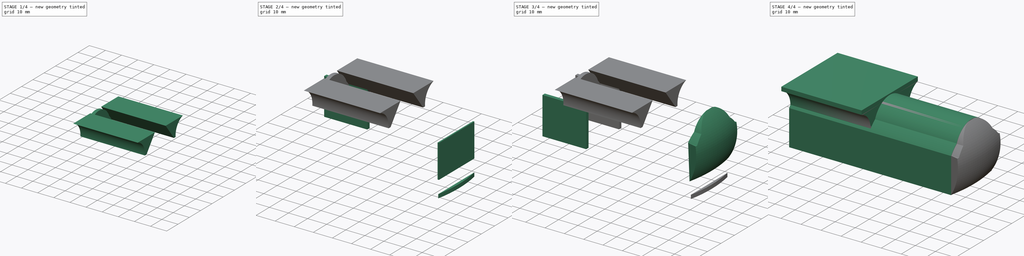
[diagram: build sequence overview — one tinted view per stage of 4, left to right]
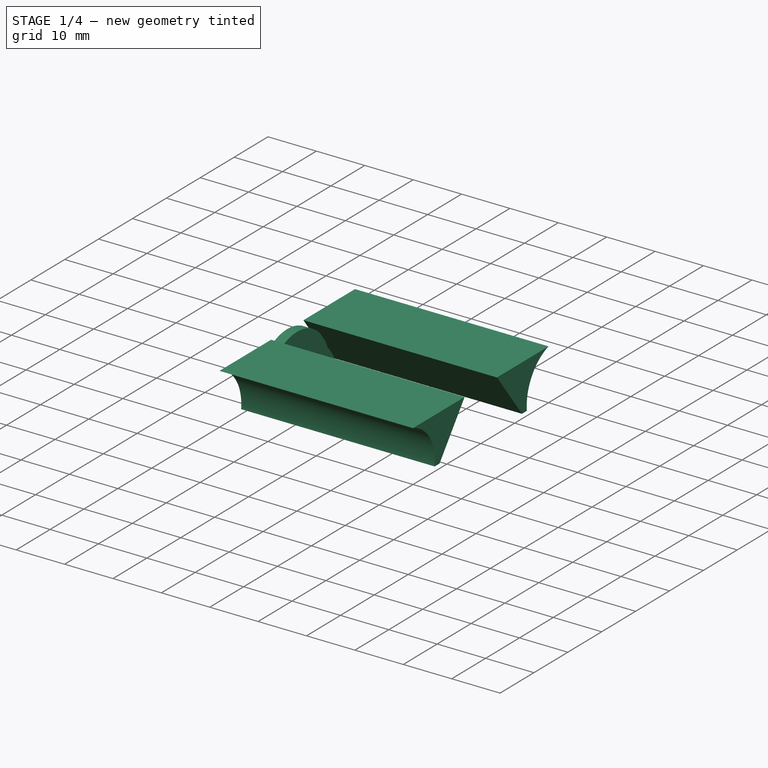
[diagram: stage 1 of 4 — iso view after this stage's code; geometry added in this stage tinted green]
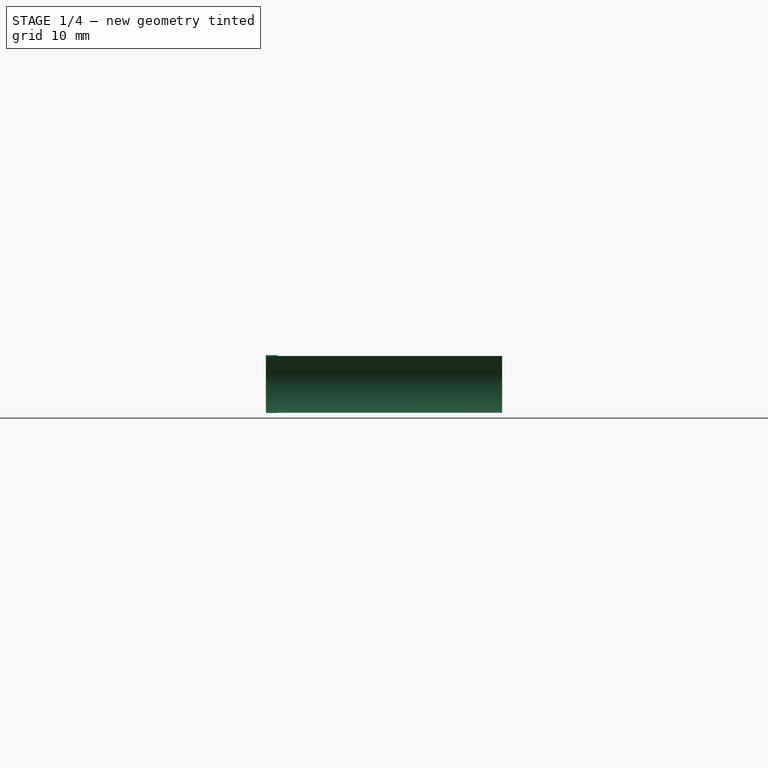
[diagram: stage 1 of 4 — front view after this stage's code; geometry added in this stage tinted green]
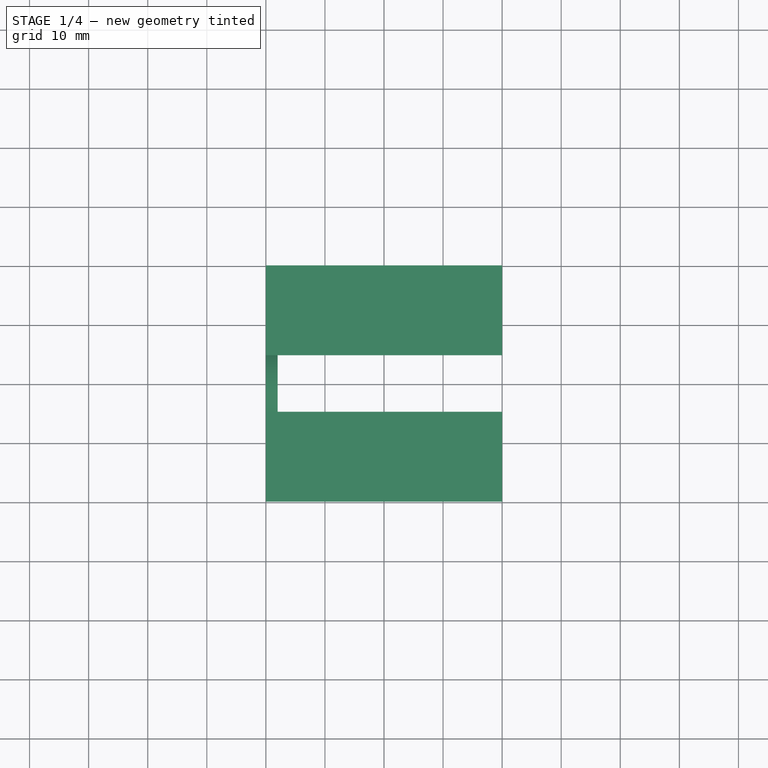
[diagram: stage 1 of 4 — top view after this stage's code; geometry added in this stage tinted green]
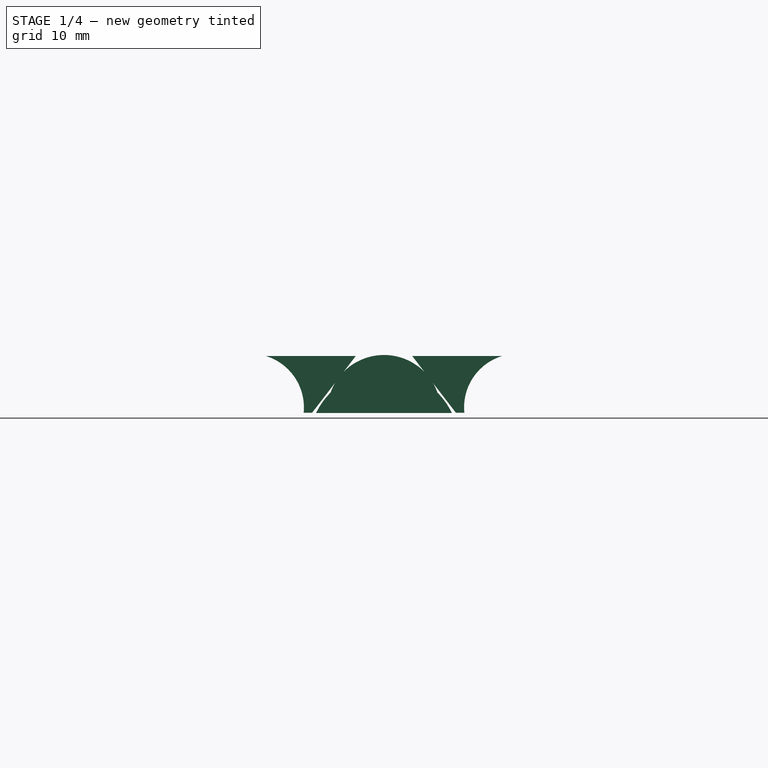
[diagram: stage 1 of 4 — right view after this stage's code; geometry added in this stage tinted green]
FCSTD DOCUMENT  (FreeCAD 0.18R16146 (Git))
Label: 02_MinibotShell
License: All rights reserved
LicenseURL: http://en.wikipedia.org/wiki/All_rights_reserved
objects: Sketcher::SketchObject×10, PartDesign::Body×7, Part::Feature×6, PartDesign::Pad×6, Part::Box×4, PartDesign::Revolution×1, Part::Cut×1, App::MeasureDistance×1, Part::MultiFuse×1, App::DocumentObjectGroup×1
note: 43 computed .brp shape members not serialized (recipe doc carries the construction recipe); baked Part::Feature solids carry a one-line shape summary decoded from their .brp

FEATURE [Sketcher::SketchObject] Sketch009
  MapMode = 5
  Placement = pos=(0,0,0) rot=(0.57735,0.57735,0.57735;2.0944rad)
  Support = -> [YZ_Plane006]
FEATURE [PartDesign::Body] Body021008
  Group = -> [Sketch008,Pad004,Sketch009]
  Origin = -> Origin006
  Placement = pos=(0,0,8.5) rot=(0,0,1;0rad)
  Tip = -> Pad004
FEATURE [PartDesign::Pad] Pad005
  Length = 2
  Length2 = 100
  Placement = pos=(0,0,0) rot=(0.57735,0.57735,0.57735;2.0944rad)
  Profile = -> Sketch003
  Type = 0
FEATURE [PartDesign::Body] Body021009
  Group = -> [Sketch003,Pad005]
  Origin = -> Origin007
  Placement = pos=(-14.8,0,-0.25) rot=(0,0,1;0rad)
  Tip = -> Pad005
FEATURE [Sketcher::SketchObject] Sketch010
  MapMode = 5
  Placement = pos=(0,0,0) rot=(0.57735,0.57735,0.57735;2.0944rad)
  Support = -> [YZ_Plane008]
  sketch-geometry (4):
    g0: ArcOfCircle CenterX=-22.6622 CenterY=27.1919 CenterZ=0 NormalX=0 NormalY=0 NormalZ=1 AngleXU=0 Radius=9.10594 StartAngle=6.18508 EndAngle=7.55729
    g1: LineSegment StartX=-20 StartY=35.9 StartZ=0 EndX=-4.77584 EndY=35.9 EndZ=0
    g2: LineSegment StartX=-4.77584 StartY=35.9 StartZ=0 EndX=-12.1609 EndY=26.3 EndZ=0
    g3: LineSegment StartX=-12.1609 StartY=26.3 StartZ=0 EndX=-13.6 EndY=26.3 EndZ=0
  constraints (6):
    c: Coincident(g1,g0)
    c: Horizontal(g1)
    c: Coincident(g1,g2)
    c: Coincident(g2,g3)
    c: Coincident(g3,g0)
    c: Horizontal(g3)
FEATURE [Sketcher::SketchObject] Sketch011
  MapMode = 5
  Placement = pos=(0,0,0) rot=(0.57735,0.57735,0.57735;2.0944rad)
  Support = -> [YZ_Plane009]
  sketch-geometry (4):
    g0: ArcOfCircle CenterX=22.6622 CenterY=27.1919 CenterZ=0 NormalX=0 NormalY=0 NormalZ=1 AngleXU=0 Radius=9.10594 StartAngle=1.86748 EndAngle=3.2397
    g1: LineSegment StartX=20 StartY=35.9 StartZ=0 EndX=4.77584 EndY=35.9 EndZ=0
    g2: LineSegment StartX=4.77584 StartY=35.9 StartZ=0 EndX=12.1609 EndY=26.3 EndZ=0
    g3: LineSegment StartX=12.1609 StartY=26.3 StartZ=0 EndX=13.6 EndY=26.3 EndZ=0
  constraints (6):
    c: Coincident(g1,g0)
    c: Horizontal(g1)
    c: Coincident(g1,g2)
    c: Coincident(g2,g3)
    c: Coincident(g3,g0)
    c: Horizontal(g3)
FEATURE [PartDesign::Pad] Pad006
  Length = 40
  Length2 = 100
  Placement = pos=(0,0,0) rot=(0.57735,0.57735,0.57735;2.0944rad)
  Profile = -> Sketch010
  Type = 0
FEATURE [PartDesign::Body] Body021010
  Group = -> [Sketch010,Pad006]
  Origin = -> Origin008
  Placement = pos=(-14.8,0,0) rot=(0,0,1;0rad)
  Tip = -> Pad006
FEATURE [PartDesign::Pad] Pad007
  Length = 40
  Length2 = 100
  Placement = pos=(0,0,0) rot=(0.57735,0.57735,0.57735;2.0944rad)
  Profile = -> Sketch011
  Type = 0
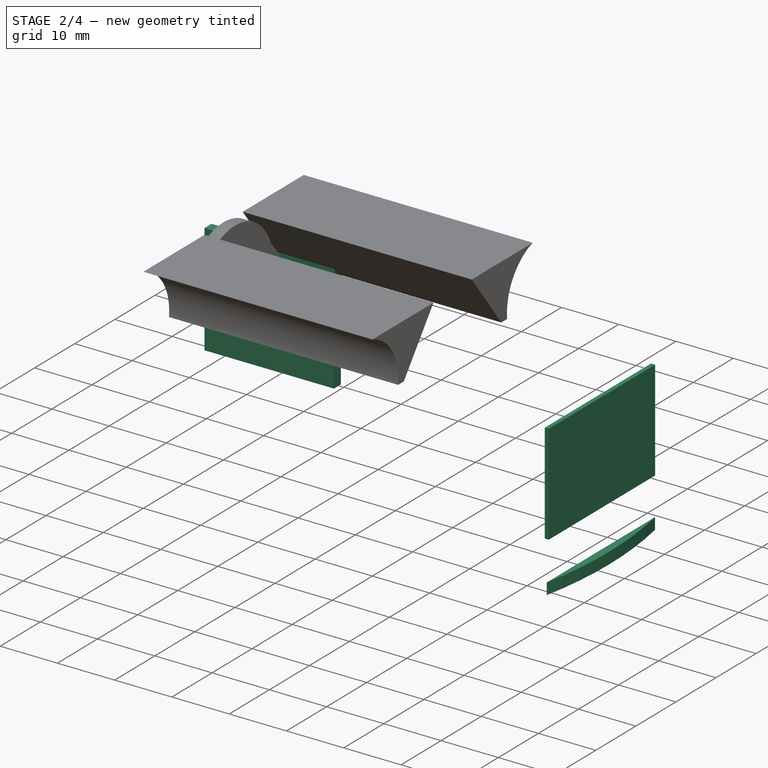
[diagram: stage 2 of 4 — iso view after this stage's code; geometry added in this stage tinted green]
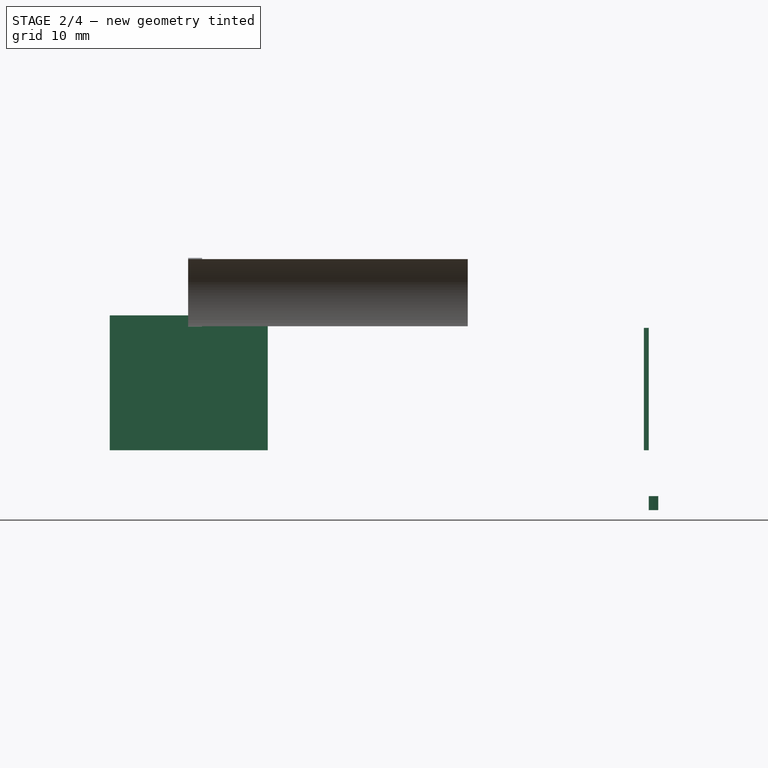
[diagram: stage 2 of 4 — front view after this stage's code; geometry added in this stage tinted green]
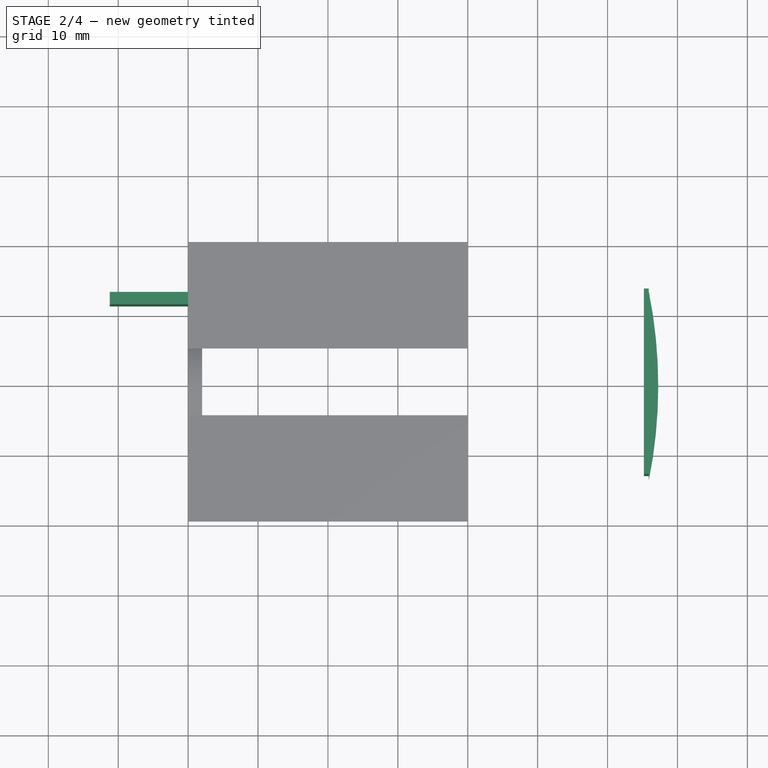
[diagram: stage 2 of 4 — top view after this stage's code; geometry added in this stage tinted green]
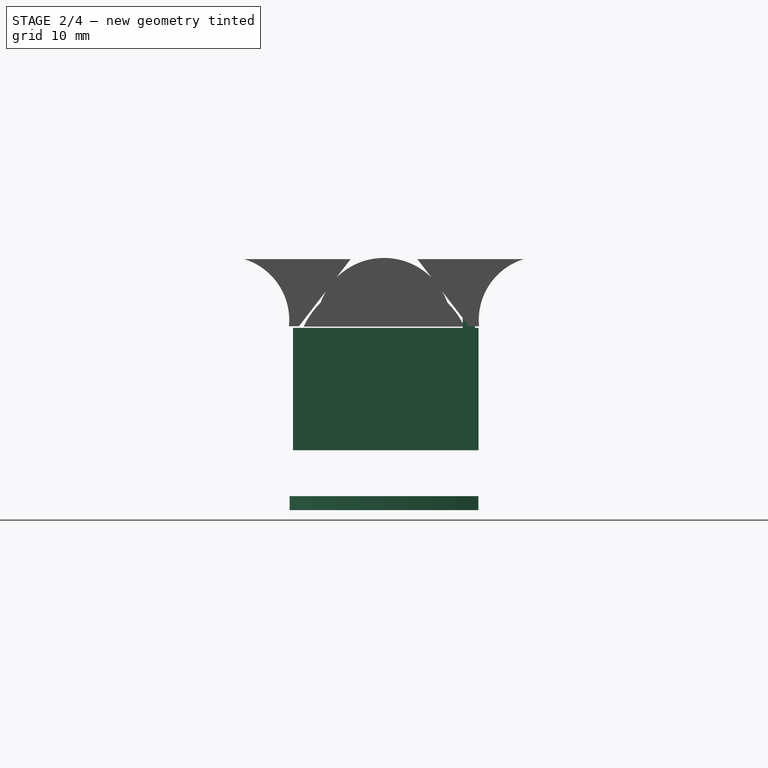
[diagram: stage 2 of 4 — right view after this stage's code; geometry added in this stage tinted green]
FEATURE [Part::Box] Box002  label="Cube002"
  AttacherType = Attacher::AttachEngine3D
  Height = 19.3
  Length = 22.6
  Placement = pos=(-11.21,11.26,8.56) rot=(0,0,1;0rad)
  Width = 1.75
FEATURE [Part::Box] Box003  label="Cube003"
  AttacherType = Attacher::AttachEngine3D
  Height = 17.5
  Length = 26.54
  Placement = pos=(65.9,-13.02,8.56) rot=(0,0,1;1.5708rad)
  Width = 0.7
FEATURE [Sketcher::SketchObject] Sketch008
  MapMode = 5
  Support = -> [XY_Plane006]
  sketch-geometry (2):
    g0: ArcOfCircle CenterX=-0.91233 CenterY=-1.17e-14 CenterZ=0 NormalX=0 NormalY=0 NormalZ=1 AngleXU=0 Radius=68.1626 StartAngle=6.08381 EndAngle=6.48256
    g1: LineSegment StartX=65.9 StartY=13.5 StartZ=0 EndX=65.9 EndY=-13.5 EndZ=0
  constraints (3):
    c: Symmetric(g0,g0,g-1)
    c: Coincident(g1,g0)
    c: Coincident(g1,g0)
FEATURE [PartDesign::Pad] Pad004
  Length = 2
  Length2 = 100
  Profile = -> Sketch008
  Type = 0
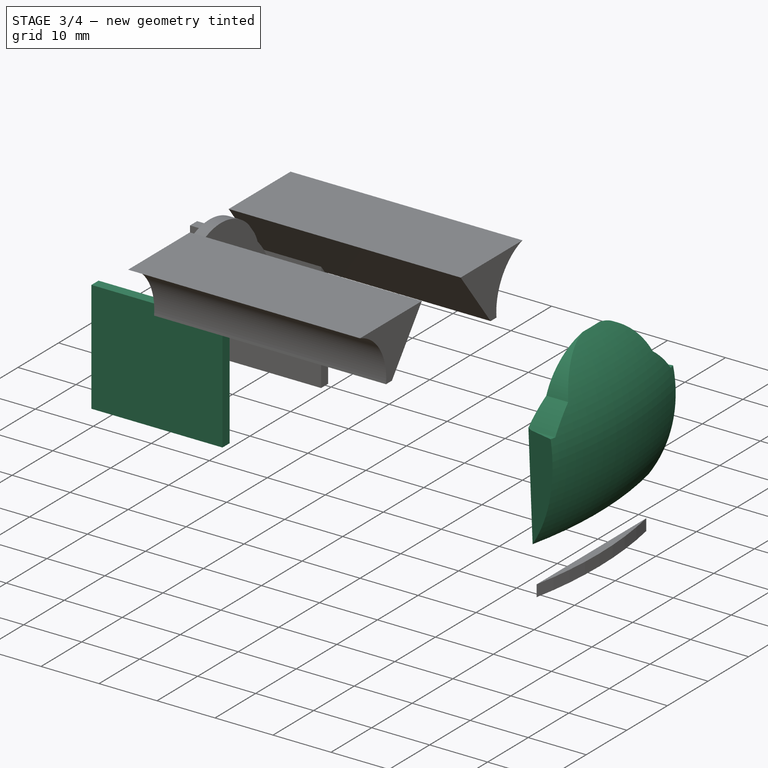
[diagram: stage 3 of 4 — iso view after this stage's code; geometry added in this stage tinted green]
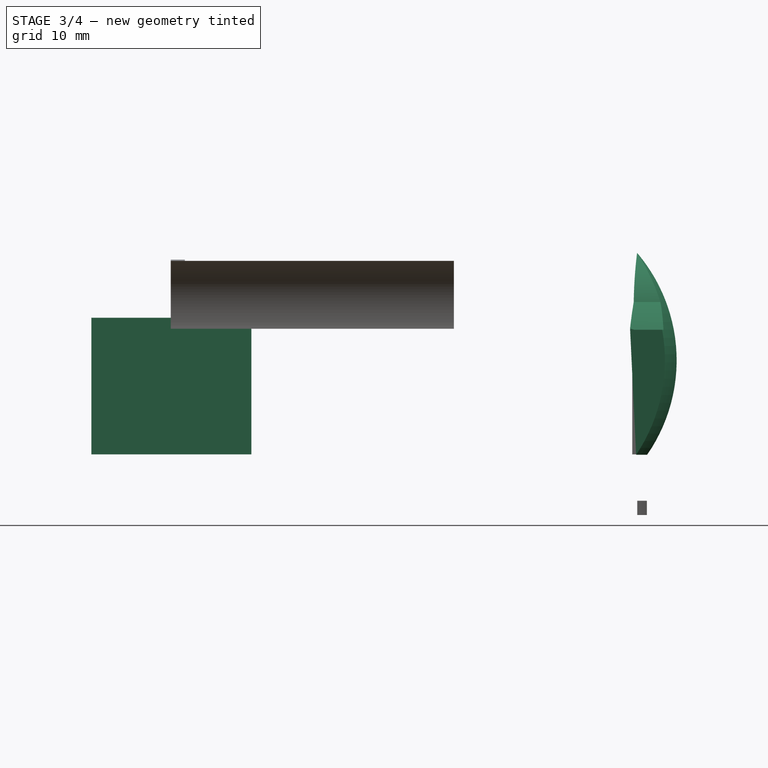
[diagram: stage 3 of 4 — front view after this stage's code; geometry added in this stage tinted green]
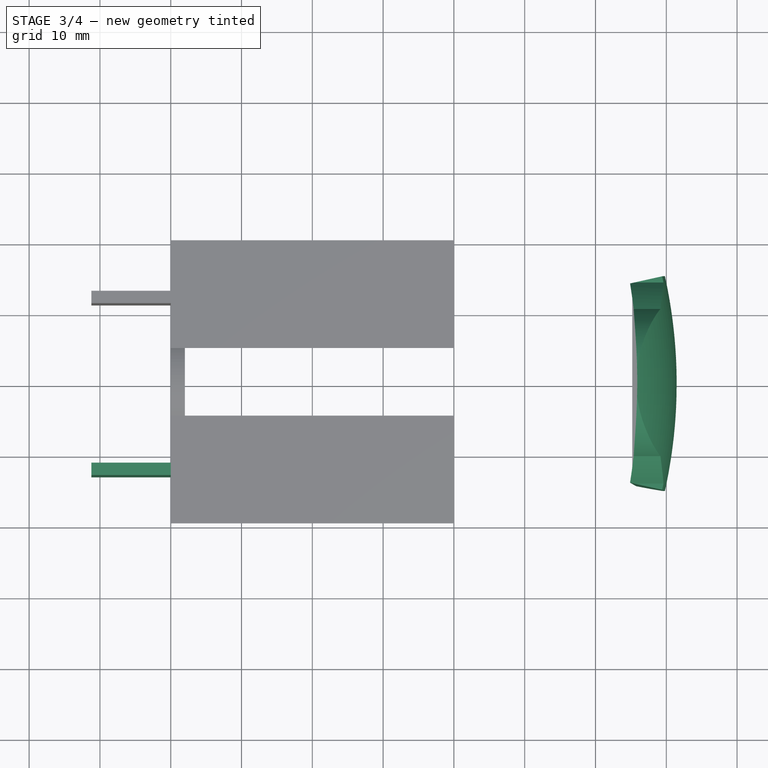
[diagram: stage 3 of 4 — top view after this stage's code; geometry added in this stage tinted green]
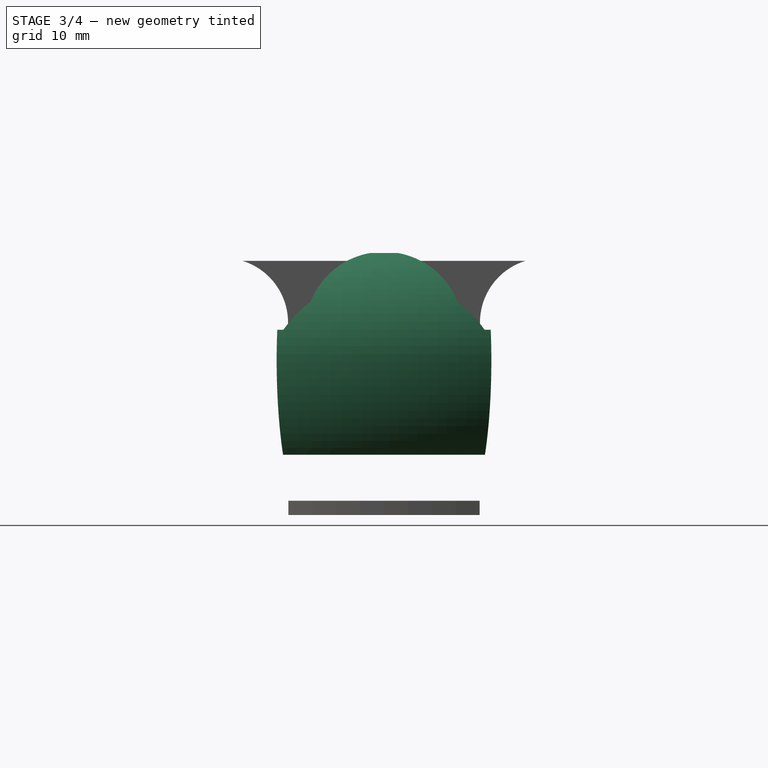
[diagram: stage 3 of 4 — right view after this stage's code; geometry added in this stage tinted green]
FEATURE [Part::Feature] Cut006  label="Tyre001"
  Placement = pos=(5.2,-23.5,0) rot=(0,0,1;0rad)
  shape: bbox 55.35 x 17.81 x 55.35 mm, 130 faces (baked)
FEATURE [Sketcher::SketchObject] Sketch006
  MapMode = 5
  Placement = pos=(0,0,0) rot=(1,0,0;1.5708rad)
  Support = -> [XZ_Plane004]
  sketch-geometry (2):
    g0: ArcOfCircle CenterX=46.6416 CenterY=21.8415 CenterZ=0 NormalX=0 NormalY=0 NormalZ=1 AngleXU=0 Radius=23.4245 StartAngle=5.67757 EndAngle=6.98699
    g1: LineSegment StartX=64.5 StartY=37 StartZ=0 EndX=65.9 EndY=8.50667 EndZ=0
  constraints (4):
    c: Coincident(g1,g0)
    c: Coincident(g1,g0)
    c: DistanceX(g0) = 65.9
    c: DistanceY(g0) = 8.50667
FEATURE [PartDesign::Revolution] Revolution
  Angle = 25
  Axis = (0,-2e-16,1)
  Base = (0,0,0)
  Midplane = true
  Placement = pos=(0,0,0) rot=(1,0,0;1.5708rad)
  Profile = -> Sketch006
  ReferenceAxis = -> Sketch006 [V_Axis]
  Reversed = true
FEATURE [PartDesign::Body] Body021006
  Group = -> [Sketch006,Revolution]
  Origin = -> Origin004
  Tip = -> Revolution
FEATURE [Sketcher::SketchObject] Sketch007
  MapMode = 5
  Placement = pos=(0,0,0) rot=(0.57735,0.57735,0.57735;2.0944rad)
  Support = -> [YZ_Plane005]
  sketch-geometry (8):
    g0: ArcOfCircle CenterX=4.03413e-05 CenterY=26.0022 CenterZ=0 NormalX=0 NormalY=0 NormalZ=1 AngleXU=0 Radius=11.1751 StartAngle=0.374591 EndAngle=2.76699
    g1: ArcOfCircle CenterX=-2.4e-15 CenterY=16.2104 CenterZ=0 NormalX=0 NormalY=0 NormalZ=1 AngleXU=0 Radius=17.3447 StartAngle=0.610658 EndAngle=0.927768
    g2: ArcOfCircle CenterX=-2.4e-15 CenterY=16.2104 CenterZ=0 NormalX=0 NormalY=0 NormalZ=1 AngleXU=0 Radius=17.3447 StartAngle=2.21382 EndAngle=2.53093
    g3: LineSegment StartX=-14.21 StartY=26.156 StartZ=0 EndX=-18.6744 EndY=26.156 EndZ=0
    g4: LineSegment StartX=-18.6744 StartY=26.156 StartZ=0 EndX=-18.6744 EndY=41 EndZ=0
    g5: LineSegment StartX=-18.6744 StartY=41 StartZ=0 EndX=18.5 EndY=41 EndZ=0
    g6: LineSegment StartX=18.5 StartY=41 StartZ=0 EndX=18.5 EndY=26.156 EndZ=0
    g7: LineSegment StartX=18.5 StartY=26.156 StartZ=0 EndX=14.21 EndY=26.156 EndZ=0
  constraints (17):
    c: Equal(g1,g2)
    c: Coincident(g1,g2)
    c: Coincident(g0,g2)
    c: Coincident(g0,g1)
    c: Coincident(g3,g2)
    c: Horizontal(g3)
    c: Coincident(g4,g3)
    c: Vertical(g4)
    c: Coincident(g4,g5)
    c: Horizontal(g5)
    c: Coincident(g5,g6)
    c: Vertical(g6)
    c: Coincident(g6,g7)
    c: Horizontal(g7)
    c: Coincident(g1,g7)
    c: Symmetric(g2,g1,g-2)
    c: DistanceX(g2) = -14.21
FEATURE [PartDesign::Pad] Pad003
  Length = 50
  Length2 = 100
  Placement = pos=(0,0,0) rot=(0.57735,0.57735,0.57735;2.0944rad)
  Profile = -> Sketch007
  Type = 0
FEATURE [PartDesign::Body] Body021007
  Group = -> [Sketch007,Pad003]
  Origin = -> Origin005
  Placement = pos=(36.8,0,0) rot=(0,0,1;0rad)
  Tip = -> Pad003
FEATURE [Part::Cut] Cut
  Base = -> Body021006
  Placement = pos=(1.4,0,0) rot=(0,0,1;0rad)
  Tool = -> Body021007
FEATURE [Part::Box] Box001  label="Cube001"
  AttacherType = Attacher::AttachEngine3D
  Height = 19.3
  Length = 22.6
  Placement = pos=(-11.21,-13.02,8.56) rot=(0,0,1;0rad)
  Width = 1.75
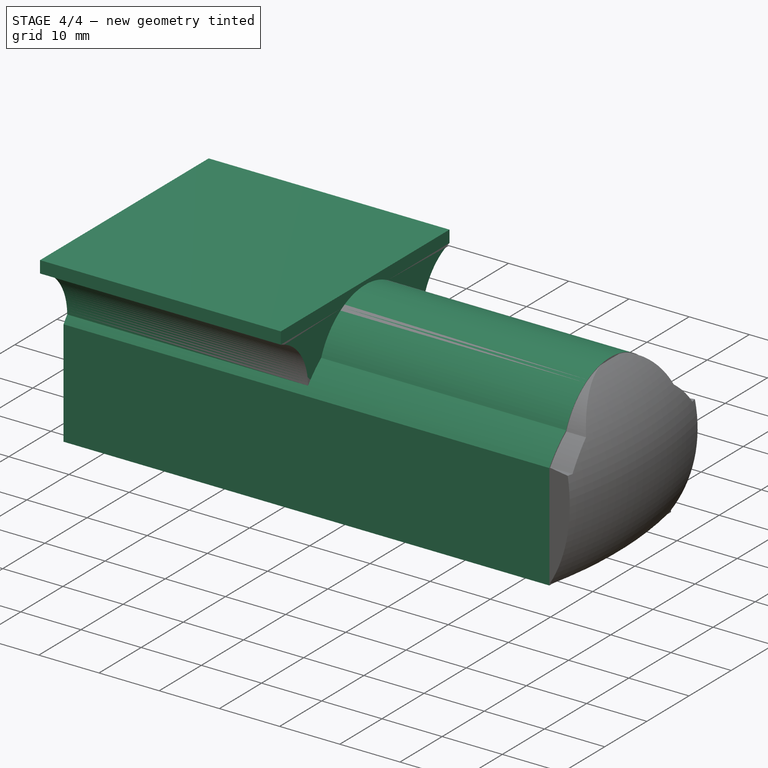
[diagram: stage 4 of 4 — iso view after this stage's code; geometry added in this stage tinted green]
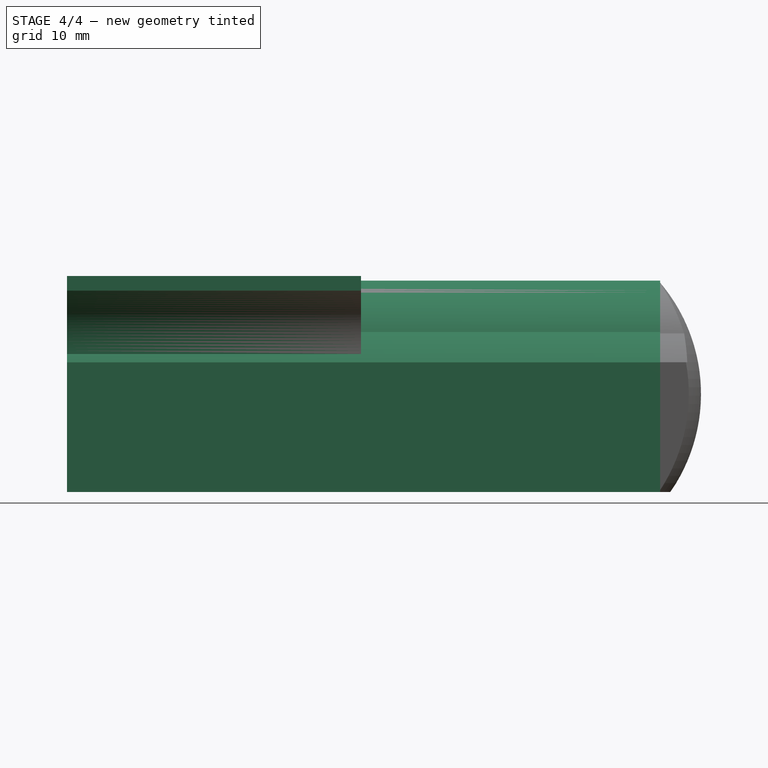
[diagram: stage 4 of 4 — front view after this stage's code; geometry added in this stage tinted green]
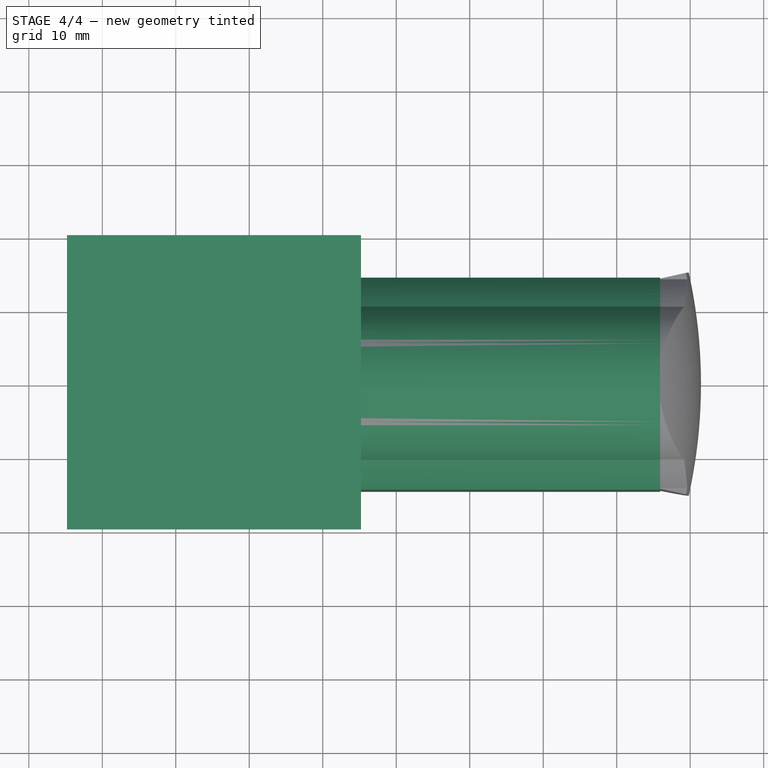
[diagram: stage 4 of 4 — top view after this stage's code; geometry added in this stage tinted green]
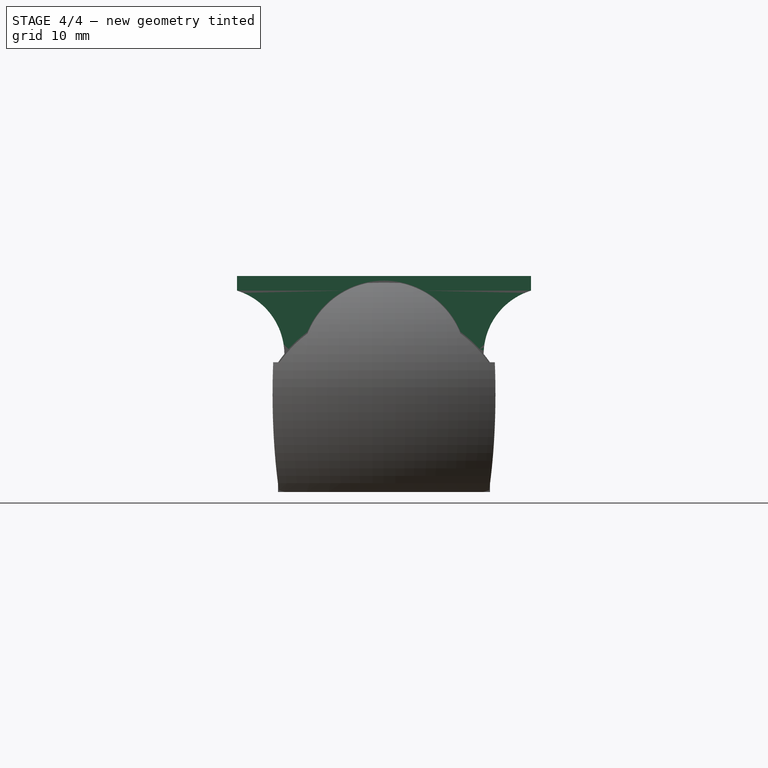
[diagram: stage 4 of 4 — right view after this stage's code; geometry added in this stage tinted green]
FEATURE [Part::Feature] Fusion041001  label="Chassis001"
  shape: bbox 85.95 x 51.01 x 34 mm, 228 faces (baked)
FEATURE [Sketcher::SketchObject] Sketch
FEATURE [Part::Feature] Body007001  label="RightBackWheel"
  shape: bbox 50 x 17.02 x 50 mm, 26 faces (baked)
FEATURE [Part::Feature] Body007002  label="LeftBackWheel"
  Placement = pos=(0,0,0) rot=(1,0,0;3.14159rad)
  shape: bbox 50 x 17.02 x 50 mm, 26 faces (baked)
FEATURE [Part::Feature] Body021001  label="FrontWheelRight"
  shape: bbox 17.9 x 10.07 x 17.9 mm, 26 faces (baked)
FEATURE [Part::Feature] Body021002  label="FrontWheelLeft"
  Placement = pos=(0,-4e-15,-21) rot=(1,0,0;3.14159rad)
  shape: bbox 17.9 x 10.07 x 17.9 mm, 26 faces (baked)
FEATURE [Sketcher::SketchObject] Sketch001
  MapMode = 5
  Placement = pos=(0,0,0) rot=(0.57735,0.57735,0.57735;2.0944rad)
  Support = -> [YZ_Plane]
  sketch-geometry (14):
    g0: ArcOfCircle CenterX=-0.0078968 CenterY=26.0022 CenterZ=0 NormalX=0 NormalY=0 NormalZ=1 AngleXU=0 Radius=11.2588 StartAngle=0.390649 EndAngle=2.75255
    g1: ArcOfCircle CenterX=-1e-16 CenterY=16.1989 CenterZ=0 NormalX=0 NormalY=0 NormalZ=1 AngleXU=0 Radius=17.5145 StartAngle=0.603272 EndAngle=0.934841
    g2: ArcOfCircle CenterX=-1e-16 CenterY=16.1989 CenterZ=0 NormalX=0 NormalY=0 NormalZ=1 AngleXU=0 Radius=17.5145 StartAngle=2.20836 EndAngle=2.53832
    g3: LineSegment StartX=14.4229 StartY=26.1356 StartZ=0 EndX=14.4229 EndY=8.50595 EndZ=0
    g4: LineSegment StartX=14.4229 StartY=8.50595 StartZ=0 EndX=13.02 EndY=8.50595 EndZ=0
    g5: LineSegment StartX=-14.4229 StartY=8.50595 StartZ=0 EndX=-14.4229 EndY=26.1356 EndZ=0
    g6: LineSegment StartX=13.02 StartY=8.50595 StartZ=0 EndX=13.02 EndY=25.9942 EndZ=0
    g7: LineSegment StartX=-13.02 StartY=25.9942 StartZ=0 EndX=-13.02 EndY=8.50595 EndZ=0
    g8: LineSegment StartX=-13.02 StartY=8.50595 StartZ=0 EndX=-14.4229 EndY=8.50595 EndZ=0
    g9: ArcOfCircle CenterX=-5e-16 CenterY=25.8727 CenterZ=0 NormalX=0 NormalY=0 NormalZ=1 AngleXU=0 Radius=9.74347 StartAngle=0.389853 EndAngle=2.75174
    g10: ArcOfCircle CenterX=-4e-16 CenterY=20.6563 CenterZ=0 NormalX=0 NormalY=0 NormalZ=1 AngleXU=0 Radius=12.6799 StartAngle=0.434522 EndAngle=0.780215
    g11: ArcOfCircle CenterX=-4e-16 CenterY=20.6563 CenterZ=0 NormalX=0 NormalY=0 NormalZ=1 AngleXU=0 Radius=12.6799 StartAngle=2.36138 EndAngle=2.70707
    g12: LineSegment StartX=-13.02 StartY=25.9942 StartZ=0 EndX=-11.5015 EndY=25.9942 EndZ=0
    g13: LineSegment StartX=11.5015 StartY=25.9942 StartZ=0 EndX=13.02 EndY=25.9942 EndZ=0
  constraints (32):
    c: Equal(g1,g2)
    c: Coincident(g1,g2)
    c: Coincident(g3,g4)
    c: Coincident(g8,g5)
    c: Vertical(g3)
    c: Vertical(g5)
    c: Vertical(g6)
    c: Coincident(g4,g6)
    c: Tangent(g4,g8)
    c: Coincident(g0,g2)
    c: Coincident(g2,g5)
    c: Coincident(g0,g1)
    c: Coincident(g1,g3)
    c: Coincident(g7,g8)
    c: Equal(g10,g11)
    c: Coincident(g10,g11)
    c: Coincident(g9,g11)
    c: Coincident(g9,g10)
    c: Coincident(g12,g7)
    c: Coincident(g12,g11)
    c: Horizontal(g12)
    c: Coincident(g13,g10)
    c: Coincident(g13,g6)
    c: Horizontal(g13)
    c: Symmetric(g7,g4,g-2)
    c: DistanceX(g9) = -9.01236
    c: DistanceY(g9) = 29.5757
    c: Symmetric(g9,g9,g-2)
    c: Distance(g2,g7) = 1.41
    c: DistanceX(g7) = -13.02
    c: Symmetric(g7,g6,g-2)
    c: Symmetric(g1,g2,g-2)
FEATURE [Sketcher::SketchObject] Sketch002
  Placement = pos=(0,0,0) rot=(0.57735,0.57735,0.57735;2.0944rad)
  sketch-geometry (9):
    g0: ArcOfCircle CenterX=-0.00032352 CenterY=26.0009 CenterZ=0 NormalX=0 NormalY=0 NormalZ=1 AngleXU=0 Radius=10.498 StartAngle=0.349633 EndAngle=2.79196
    g1: ArcOfCircle CenterX=-0.00122341 CenterY=15.9948 CenterZ=0 NormalX=0 NormalY=0 NormalZ=1 AngleXU=0 Radius=16.8024 StartAngle=0.637841 EndAngle=0.943404
    g2: ArcOfCircle CenterX=-0.00122341 CenterY=15.9948 CenterZ=0 NormalX=0 NormalY=0 NormalZ=1 AngleXU=0 Radius=16.8024 StartAngle=2.19801 EndAngle=2.50375
    g3: LineSegment StartX=13.5 StartY=26 StartZ=0 EndX=13.5 EndY=11.3488 EndZ=0
    g4: LineSegment StartX=13.5 StartY=11.3488 StartZ=0 EndX=12.2709 EndY=11.3488 EndZ=0
    g5: LineSegment StartX=-13.5 StartY=11.3488 StartZ=0 EndX=-13.5 EndY=26 EndZ=0
    g6: LineSegment StartX=12.2709 StartY=11.3488 StartZ=0 EndX=12.2709 EndY=26 EndZ=0
    g7: LineSegment StartX=-12.2734 StartY=26 StartZ=0 EndX=-12.2734 EndY=11.3425 EndZ=0
    g8: LineSegment StartX=-12.2734 StartY=11.3488 StartZ=0 EndX=-13.5 EndY=11.3488 EndZ=0
  constraints (14):
    c: Equal(g1,g2)
    c: PointOnObject(g1,g0)
    c: PointOnObject(g2,g0)
    c: Coincident(g1,g2)
    c: Coincident(g3,g4)
    c: Coincident(g8,g5)
    c: Horizontal(g4)
    c: Vertical(g3)
    c: Vertical(g5)
    c: Vertical(g6)
    c: Vertical(g7)
    c: Coincident(g4,g6)
    c: PointOnObject(g8,g7)
    c: Tangent(g4,g8)
FEATURE [PartDesign::Pad] Pad
  Length = 80.7
  Length2 = 100
  Placement = pos=(0,0,0) rot=(0.57735,0.57735,0.57735;2.0944rad)
  Profile = -> Sketch001
  Type = 0
FEATURE [PartDesign::Body] Body
  Group = -> [Sketch001,Pad]
  Origin = -> Origin
  Placement = pos=(-14.8,0,0) rot=(0,0,1;0rad)
  Tip = -> Pad
FEATURE [Sketcher::SketchObject] Sketch003
  MapMode = 5
  Placement = pos=(0,0,0) rot=(0.57735,0.57735,0.57735;2.0944rad)
  Support = -> [YZ_Plane007]
  sketch-geometry (4):
    g0: ArcOfCircle CenterX=-7e-16 CenterY=26.4537 CenterZ=0 NormalX=0 NormalY=0 NormalZ=1 AngleXU=0 Radius=9.61614 StartAngle=0.344143 EndAngle=2.79745
    g1: ArcOfCircle CenterX=2e-16 CenterY=20.6834 CenterZ=0 NormalX=0 NormalY=0 NormalZ=1 AngleXU=0 Radius=12.7753 StartAngle=0.450351 EndAngle=0.783315
    g2: ArcOfCircle CenterX=2e-16 CenterY=20.6834 CenterZ=0 NormalX=0 NormalY=0 NormalZ=1 AngleXU=0 Radius=12.7753 StartAngle=2.35828 EndAngle=2.69124
    g3: LineSegment StartX=-11.5015 StartY=26.2442 StartZ=0 EndX=11.5015 EndY=26.2442 EndZ=0
  constraints (8):
    c: Equal(g1,g2)
    c: Coincident(g1,g2)
    c: Coincident(g0,g2)
    c: Coincident(g0,g1)
    c: Coincident(g3,g2)
    c: Coincident(g3,g1)
    c: Horizontal(g3)
    c: Symmetric(g0,g0,g-2)
FEATURE [Part::Box] Box  label="Cube"
  AttacherType = Attacher::AttachEngine3D
  Height = 2
  Length = 40
  Placement = pos=(-14.8,-20,35.9) rot=(0,0,1;0rad)
  Width = 40
FEATURE [PartDesign::Body] Body021011
  Group = -> [Sketch011,Pad007]
  Origin = -> Origin009
  Placement = pos=(-14.8,0,0) rot=(0,0,1;0rad)
  Tip = -> Pad007
FEATURE [App::MeasureDistance] Distance  label="Distance: 40,00 mm"
  Distance = 40
  P1 = (-14.8,19.9601,37.9)
  P2 = (25.2,19.9925,37.9)
FEATURE [Part::MultiFuse] Fusion  label="21_MinibotShell"
  Shapes = -> [Body021010,Box,Box002,Box001,Body021008,Box003,Cut,Body021011,Body,Body021009]
FEATURE [App::DocumentObjectGroup] Group  label="Resources"
  Group = -> [Fusion041001,Sketch,Body007001,Body007002,Body021001,Body021002,Sketch002,Cut006,Distance]
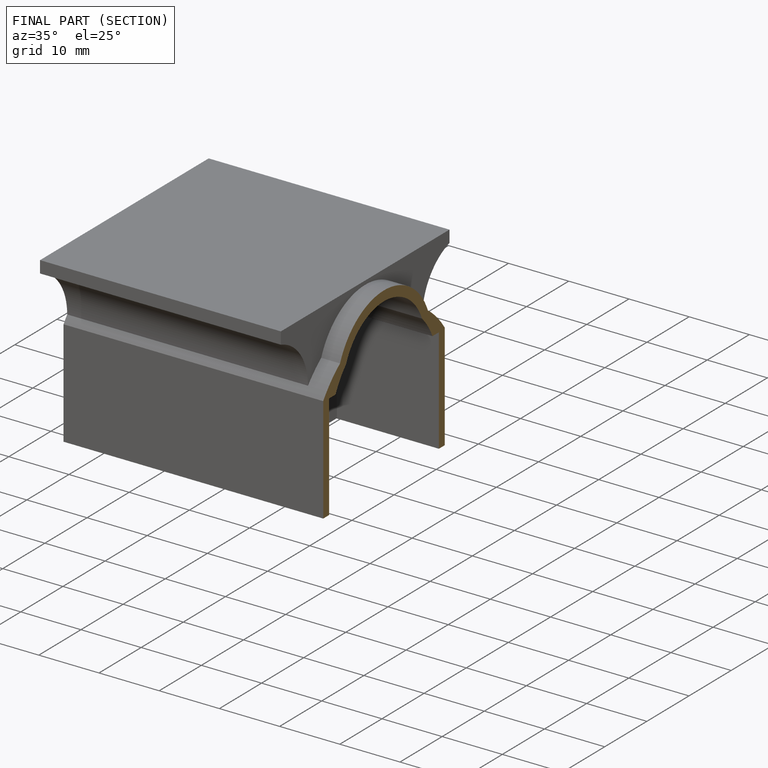
[diagram: finished part — half-section view (interior)]
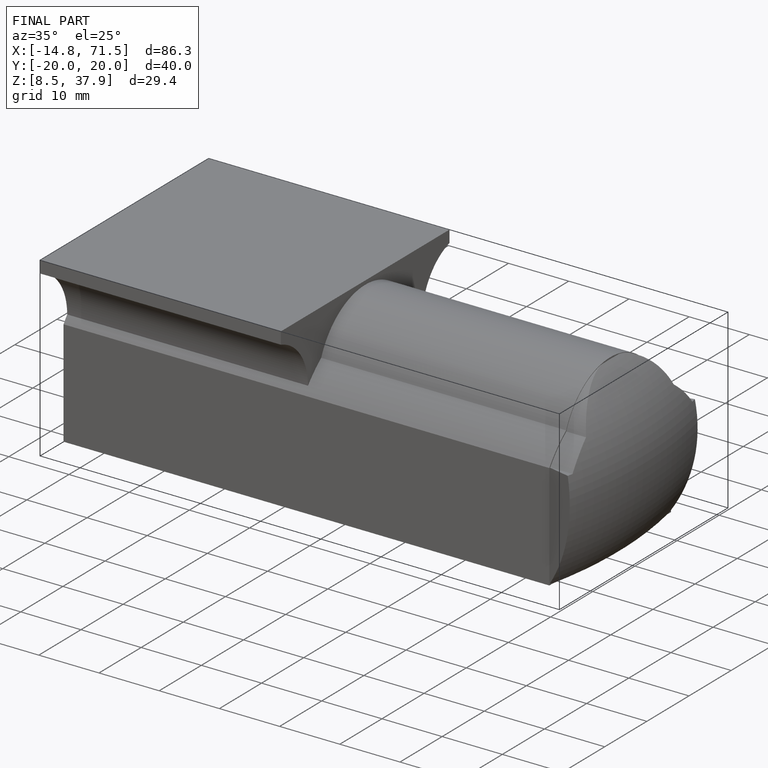
[diagram: finished part — iso view with bounding-box wireframe]
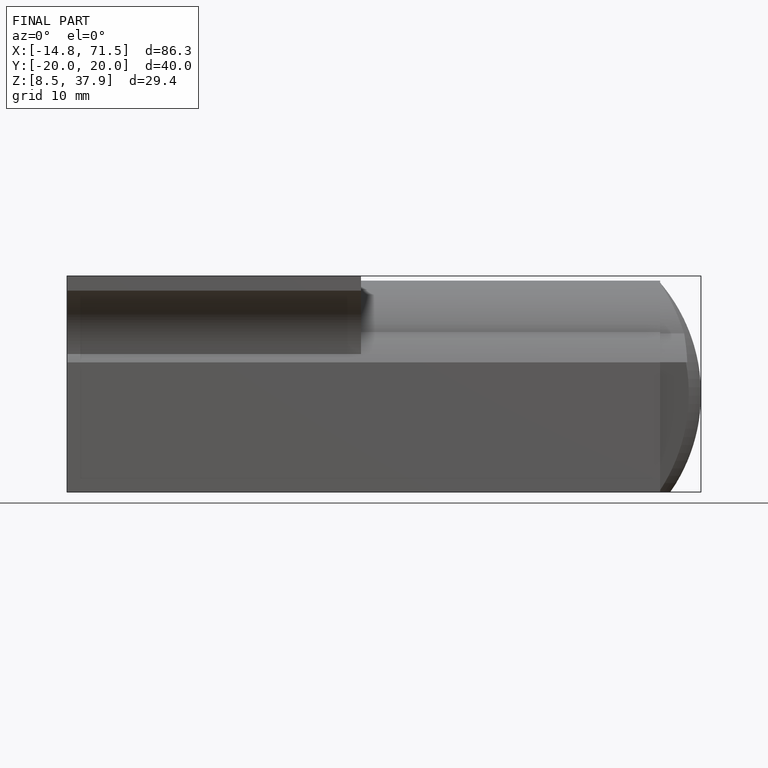
[diagram: finished part — front view with bounding-box wireframe]
